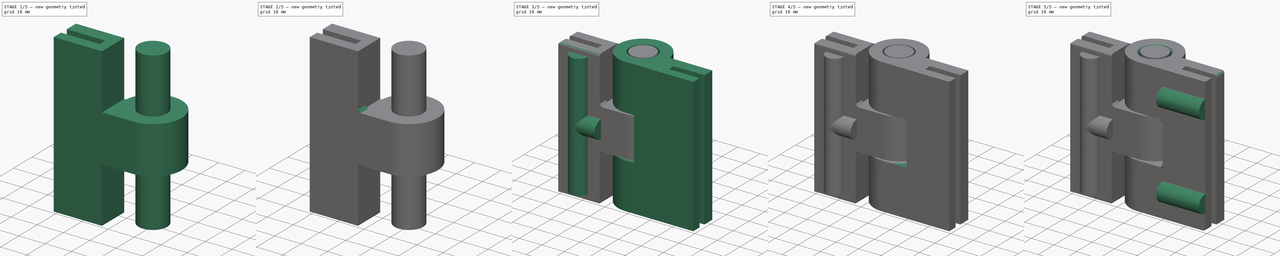
[diagram: build sequence overview — one tinted view per stage of 5, left to right]
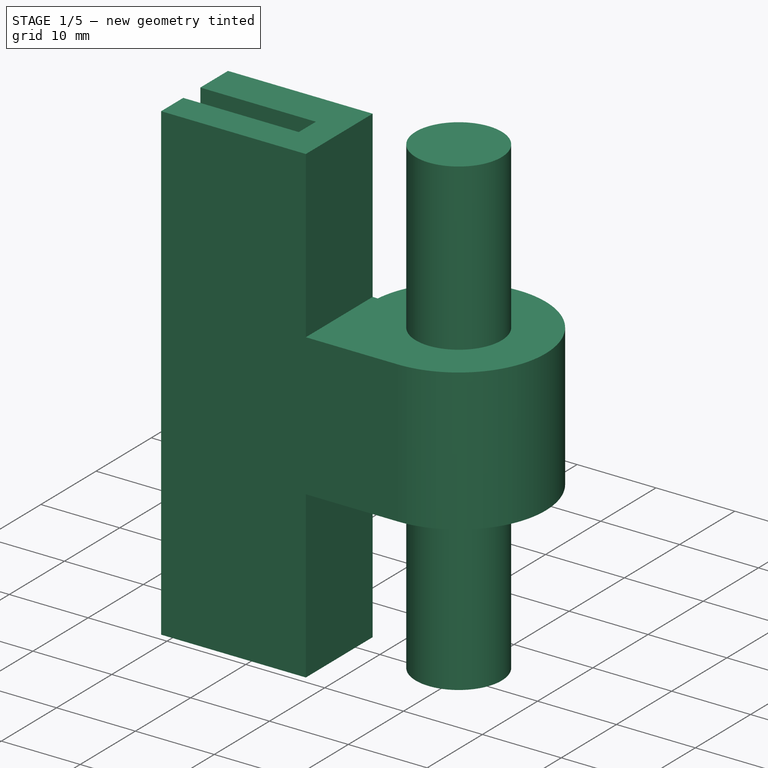
[diagram: stage 1 of 5 — iso view after this stage's code; geometry added in this stage tinted green]
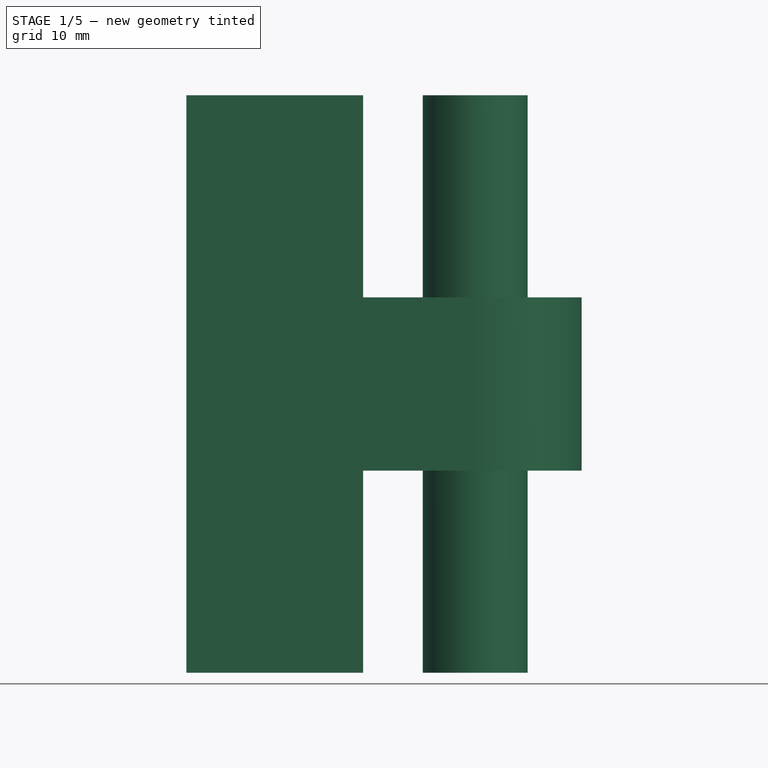
[diagram: stage 1 of 5 — front view after this stage's code; geometry added in this stage tinted green]
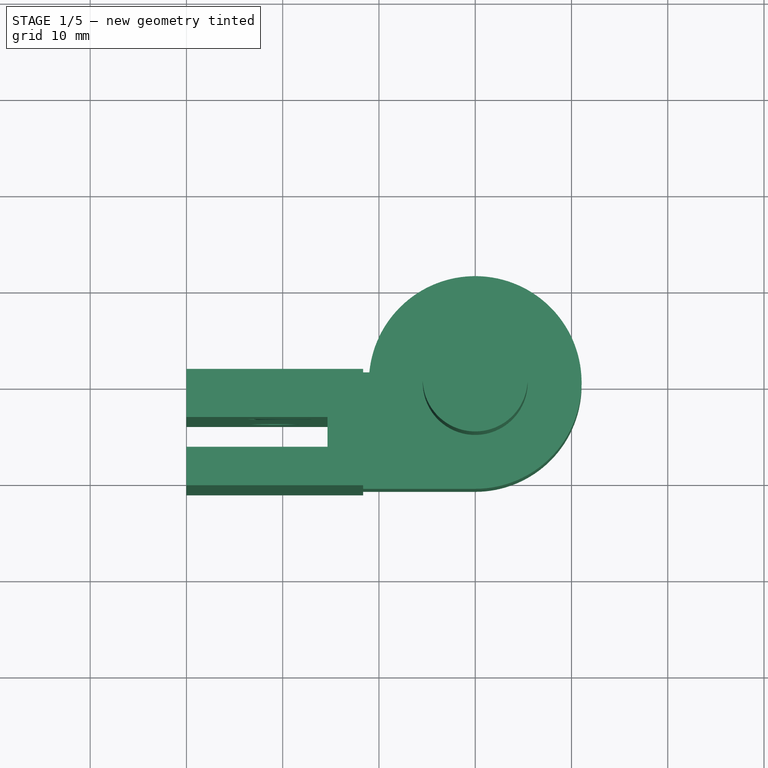
[diagram: stage 1 of 5 — top view after this stage's code; geometry added in this stage tinted green]
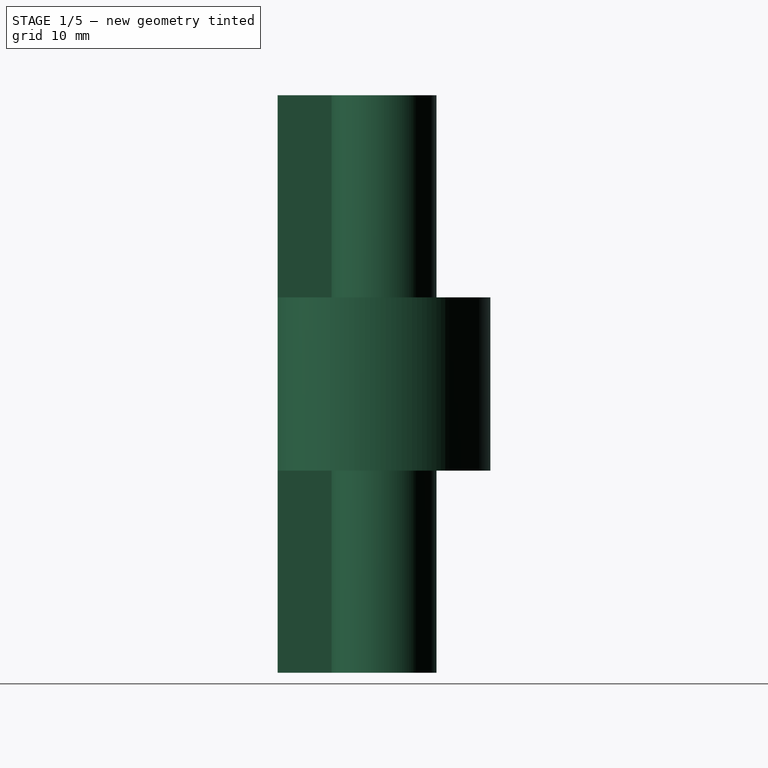
[diagram: stage 1 of 5 — right view after this stage's code; geometry added in this stage tinted green]
FCSTD DOCUMENT  (FreeCAD 0.20R29177 (Git))
Label: glassHindgeHolder
License: All rights reserved
LicenseURL: http://en.wikipedia.org/wiki/All_rights_reserved
objects: Sketcher::SketchObject×20, PartDesign::Pad×11, PartDesign::Pocket×5, PartDesign::SubtractiveHelix×4, PartDesign::Fillet×2, PartDesign::Body×2, Spreadsheet::Sheet×1, Part::MultiFuse×1
note: 67 computed .brp shape members not serialized (recipe doc carries the construction recipe); baked Part::Feature solids carry a one-line shape summary decoded from their .brp

FEATURE [Sketcher::SketchObject] Sketch002
  FullyConstrained = true
  MapMode = 5
  Support = -> [XY_Plane001]
  expr: Constraints[12] = Spreadsheet.innerScrewWall
  expr: Constraints[16] = Spreadsheet.glassHolderWidth
  expr: Constraints[18] = Spreadsheet.outerHingeR
  expr: Constraints[24] = Spreadsheet.outerHingeR + Spreadsheet.screwGuideInnerR
  expr: Constraints[8] = Spreadsheet.width
  expr: Constraints[9] = Spreadsheet.outerScrewWall
  sketch-geometry (8):
    g0: LineSegment StartX=-2e-15 StartY=-11.05 StartZ=0 EndX=-30 EndY=-11.05 EndZ=0
    g1: LineSegment StartX=-30 StartY=-11.05 StartZ=0 EndX=-30 EndY=-7.05 EndZ=0
    g2: LineSegment StartX=-30 StartY=-7.05 StartZ=0 EndX=-15.35 EndY=-7.05 EndZ=0
    g3: LineSegment StartX=-15.35 StartY=-3.95 StartZ=0 EndX=-30 EndY=-3.95 EndZ=0
    g4: LineSegment StartX=-30 StartY=-3.95 StartZ=0 EndX=-30 EndY=1.05 EndZ=0
    g5: LineSegment StartX=-30 StartY=1.05 StartZ=0 EndX=-11 EndY=1.05 EndZ=0
    g6: ArcOfCircle CenterX=0 CenterY=0 CenterZ=0 NormalX=0 NormalY=0 NormalZ=1 AngleXU=0 Radius=11.05 StartAngle=4.71239 EndAngle=9.32961
    g7: LineSegment StartX=-15.35 StartY=-3.95 StartZ=0 EndX=-15.35 EndY=-7.05 EndZ=0
  constraints (25):
    c: Coincident(g1,g0)
    c: Coincident(g2,g1)
    c: Coincident(g4,g3)
    c: Coincident(g5,g4)
    c: Parallel(g0,g-1)
    c: Parallel(g5,g-1)
    c: Parallel(g4,g-2)
    c: Parallel(g1,g-2)
    c: DistanceX(g0,g0) = 30
    c: DistanceY(g1,g1) = 4
    c: Parallel(g2,g-1)
    c: Parallel(g3,g-1)
    c: DistanceY(g4,g4) = 5
    c: DistanceX(g4,g1) = 0
    c: PointOnObject(g6,g5)
    c: Coincident(g6,g0)
    c: DistanceY(g1,g3) = 3.1
    c: PointOnObject(g5,g6)
    c: DistanceY(g0,g6) = 11.05
    c: Coincident(g6,g-1)
    c: Coincident(g7,g3)
    c: Vertical(g7)
    c: Coincident(g2,g7)
    c: PointOnObject(g0,g-2)
    c: DistanceX(g2,g0) = 15.35
FEATURE [PartDesign::Pad] Pad001
  Direction = (0,0,1)
  Length = 60
  Length2 = 10
  Midplane = true
  Profile = -> Sketch002
  ReferenceAxis = -> Sketch002 [N_Axis]
  Type = 0
  expr: Length = Spreadsheet.height
FEATURE [Sketcher::SketchObject] Sketch003
  FullyConstrained = true
  MapMode = 5
  Placement = pos=(0,0,0) rot=(1,0,0;1.5708rad)
  Support = -> [XZ_Plane001]
  expr: Constraints[15] = Spreadsheet.outerHindgeCutDistFromInside
  expr: Constraints[16] = Spreadsheet.hingeCutToCenter
  expr: Constraints[17] = Spreadsheet.hingeCutToCenter
  expr: Constraints[19] = Spreadsheet.height / 2
  expr: Constraints[20] = Spreadsheet.height / 2
  expr: Constraints[21] = Spreadsheet.slideAngle
  expr: Constraints[22] = Spreadsheet.slideAngle
  expr: Constraints[6] = Spreadsheet.outerHindgeCutDistFromInside
  expr: Constraints[7] = Spreadsheet.hingeCutToCenter
  expr: Constraints[8] = Spreadsheet.hingeCutToCenter
  sketch-geometry (8):
    g0: LineSegment StartX=-11.65 StartY=-9 StartZ=0 EndX=11.65 EndY=-9 EndZ=0
    g1: LineSegment StartX=11.65 StartY=-9 StartZ=0 EndX=11.65 EndY=-30 EndZ=0
    g2: LineSegment StartX=11.65 StartY=-30 StartZ=0 EndX=-11.65 EndY=-30 EndZ=0
    g3: LineSegment StartX=-11.65 StartY=-30 StartZ=0 EndX=-11.65 EndY=-9 EndZ=0
    g4: LineSegment StartX=-11.65 StartY=30 StartZ=0 EndX=11.65 EndY=30 EndZ=0
    g5: LineSegment StartX=11.65 StartY=30 StartZ=0 EndX=11.65 EndY=9 EndZ=0
    g6: LineSegment StartX=11.65 StartY=9 StartZ=0 EndX=-11.65 EndY=9 EndZ=0
    g7: LineSegment StartX=-11.65 StartY=9 StartZ=0 EndX=-11.65 EndY=30 EndZ=0
  constraints (24):
    c: Coincident(g0,g1)
    c: Coincident(g1,g2)
    c: Coincident(g2,g3)
    c: Coincident(g3,g0)
    c: Vertical(g1)
    c: Vertical(g3)
    c: DistanceY(g0,g-1) = 9
    c: DistanceX(g-1,g1) = 11.65
    c: DistanceX(g2,g-1) = 11.65
    c: Coincident(g4,g5)
    c: Coincident(g5,g6)
    c: Coincident(g6,g7)
    c: Coincident(g7,g4)
    c: Vertical(g5)
    c: Vertical(g7)
    c: DistanceY(g-1,g5) = 9
    c: DistanceX(g-1,g5) = 11.65
    c: DistanceX(g6,g-1) = 11.65
    c: Parallel(g6,g4)
    c: DistanceY(g-1,g4) = 30
    c: DistanceY(g1,g-1) = 30
    c: Angle(g6,g-1) = 0
    c: Angle(g0,g-1) = 0
    c: Horizontal(g2)
FEATURE [PartDesign::Pocket] Pocket001
  BaseFeature = -> Pad001
  Direction = (0,1,2e-16)
  Length = 25
  Length2 = 5
  Midplane = true
  Profile = -> Sketch003
  ReferenceAxis = -> Sketch003 [N_Axis]
  Type = 0
FEATURE [Sketcher::SketchObject] Sketch004
  FullyConstrained = true
  MapMode = 5
  Support = -> [XY_Plane001]
  expr: Constraints[1] = Spreadsheet.innerHingeR - Spreadsheet.hingeSpacing
  sketch-geometry (1):
    g0: Circle CenterX=0 CenterY=0 CenterZ=0 NormalX=0 NormalY=0 NormalZ=1 AngleXU=0 Radius=5.45
  constraints (2):
    c: Coincident(g0,g-1)
    c: Radius(g0) = 5.45
FEATURE [PartDesign::Pad] Pad002  label="Pad002Part2Final"
  BaseFeature = -> Pocket001
  Direction = (0,0,1)
  Length = 60
  Length2 = 10
  Midplane = true
  Profile = -> Sketch004
  ReferenceAxis = -> Sketch004 [N_Axis]
  Type = 0
  expr: Length = Spreadsheet.height
FEATURE [Sketcher::SketchObject] Sketch009
  AttachmentOffset = pos=(0,0,3.95) rot=(0,0,1;0rad)
  FullyConstrained = true
  MapMode = 5
  Placement = pos=(0,-3.95,-9e-16) rot=(1,0,0;1.5708rad)
  Support = -> [XZ_Plane001]
  expr: .AttachmentOffset.Base.z = Spreadsheet.innerHindgeSurfaceToCenter
  expr: Constraints[0] = Spreadsheet.screwToCenterHeight
  expr: Constraints[1] = Spreadsheet.screwToCenterHeight
  expr: Constraints[2] = Spreadsheet.screwToCenterDist
  expr: Constraints[3] = Spreadsheet.screwToCenterDist
  expr: Constraints[4] = Spreadsheet.screwR
  expr: Constraints[5] = Spreadsheet.screwR
  sketch-geometry (2):
    g0: Circle CenterX=-20.825 CenterY=15 CenterZ=0 NormalX=0 NormalY=0 NormalZ=1 AngleXU=0 Radius=2.5
    g1: Circle CenterX=-20.825 CenterY=-15 CenterZ=0 NormalX=0 NormalY=0 NormalZ=1 AngleXU=0 Radius=2.5
  constraints (6):
    c: DistanceY(g-1,g0) = 15
    c: DistanceY(g1,g-1) = 15
    c: DistanceX(g0,g-1) = 20.825
    c: DistanceX(g1,g-1) = 20.825
    c: Radius(g0) = 2.5
    c: Radius(g1) = 2.5
FEATURE [PartDesign::Pocket] Pocket004
  BaseFeature = -> Pad002
  Direction = (0,1,2e-16)
  Length = 5
  Length2 = 5
  Profile = -> Sketch009
  ReferenceAxis = -> Sketch009 [N_Axis]
  Type = 2
FEATURE [Sketcher::SketchObject] SketchTemp_Sketch009_Edge0
  AttachmentOffset = pos=(-20.825,15,0) rot=(1,0,0;1.5708rad)
  FullyConstrained = false
  MapMode = 5
  Placement = pos=(-20.825,-3.3e-15,15) rot=(1,0,0;3.14159rad)
  Support = -> [XZ_Plane001]
  expr: .AttachmentOffset.Base.x = -Spreadsheet.screwToCenterDist
  expr: .AttachmentOffset.Base.y = Spreadsheet.screwToCenterHeight
  sketch-geometry (3):
    g0: LineSegment StartX=2.5 StartY=-1.01079 StartZ=0 EndX=4.05885 EndY=-1.91079 EndZ=0
    g1: LineSegment StartX=4.05885 StartY=-1.91079 StartZ=0 EndX=2.5 EndY=-2.81079 EndZ=0
    g2: LineSegment StartX=2.5 StartY=-2.81079 StartZ=0 EndX=2.5 EndY=-1.01079 EndZ=0
  constraints (8):
    c: Equal(g2,g0)
    c: Equal(g2,g1)
    c: Distance(g2) = 1.8
    c: Coincident(g0,g1)
    c: Coincident(g1,g2)
    c: Coincident(g2,g0)
    c: Parallel(g2,g-2)
    c: DistanceX(g-1,g0) = 2.5
FEATURE [PartDesign::SubtractiveHelix] SubtractiveHelix
  Angle = 0
  Axis = (0,-1,-2e-16)
  Base = (-20.825,-3.3e-15,15)
  BaseFeature = -> Pocket004
  Growth = 0
  HasBeenEdited = false
  Height = 8
  LeftHanded = false
  Mode = 0
  Outside = false
  Pitch = 1.9
  Profile = -> SketchTemp_Sketch009_Edge0
  ReferenceAxis = -> SketchTemp_Sketch009_Edge0 [V_Axis]
  Turns = 4.21053
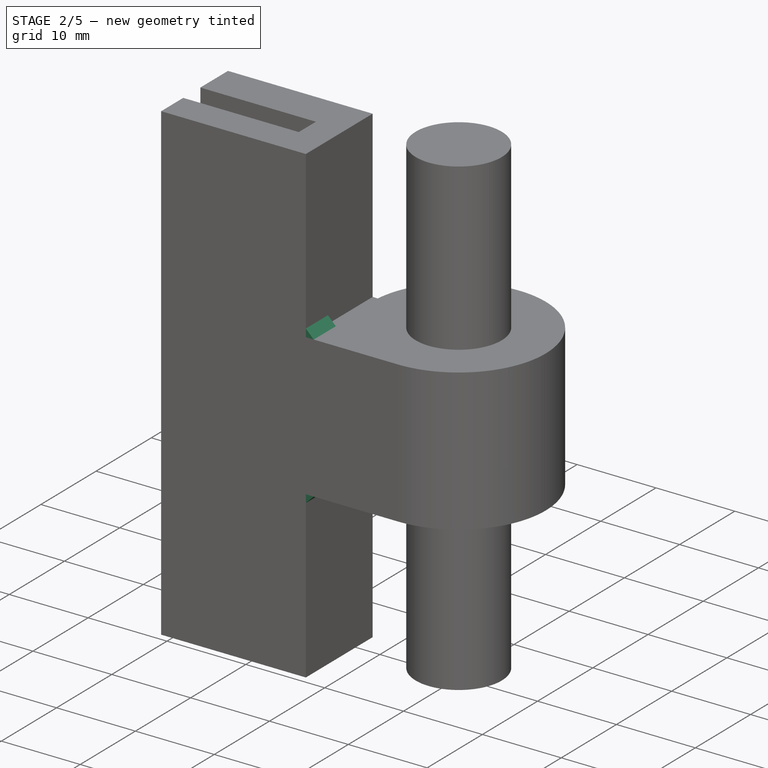
[diagram: stage 2 of 5 — iso view after this stage's code; geometry added in this stage tinted green]
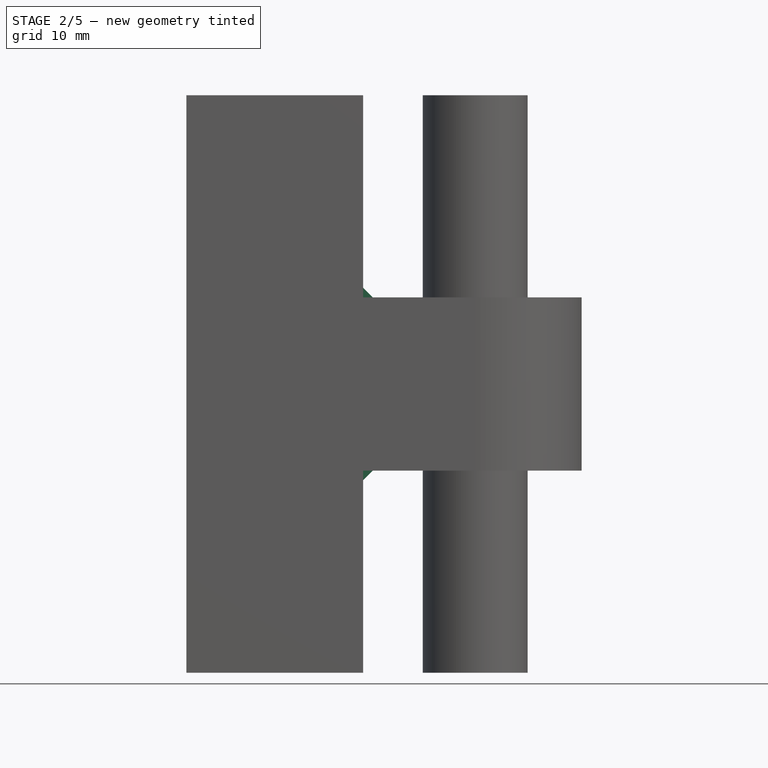
[diagram: stage 2 of 5 — front view after this stage's code; geometry added in this stage tinted green]
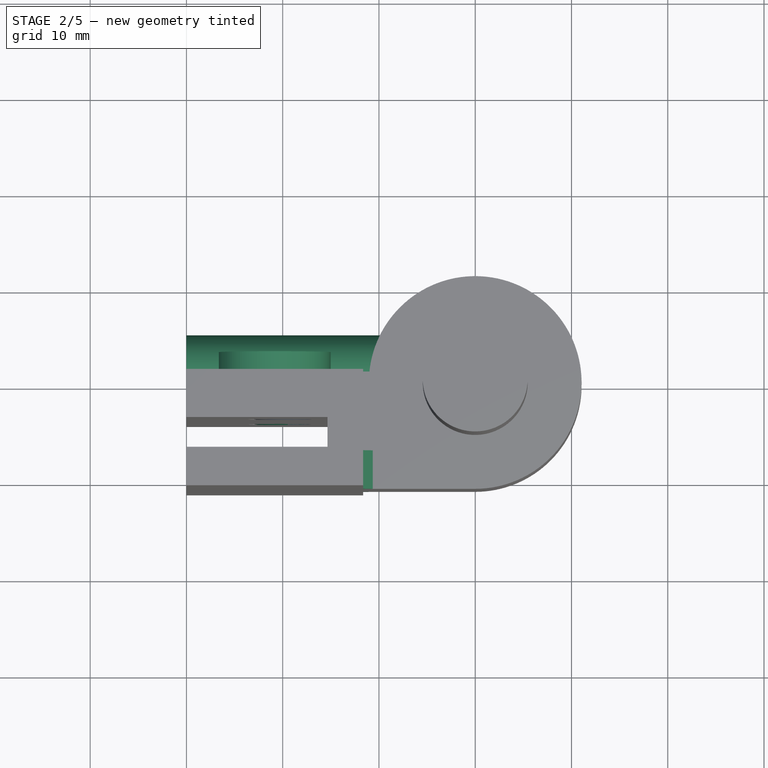
[diagram: stage 2 of 5 — top view after this stage's code; geometry added in this stage tinted green]
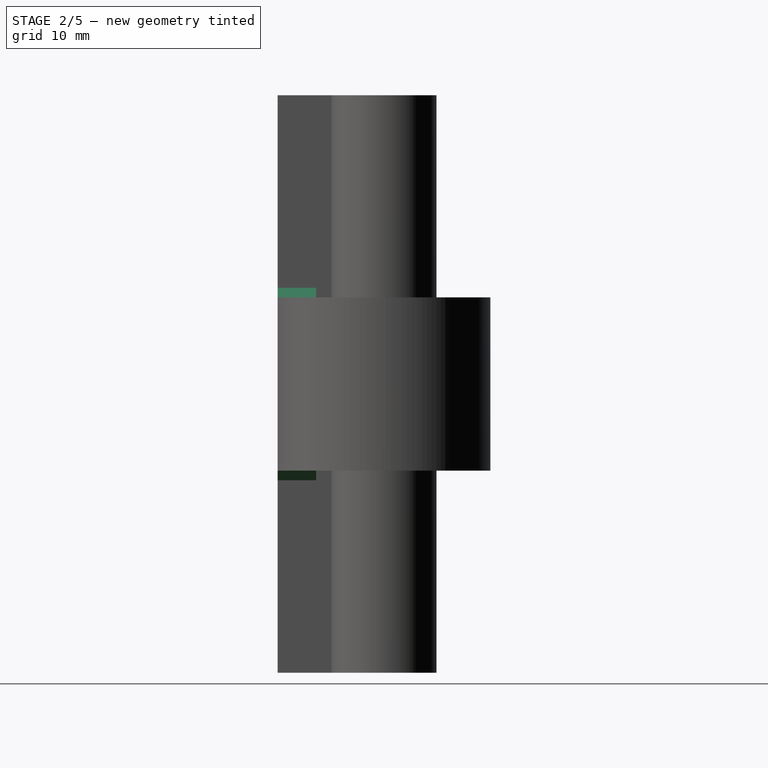
[diagram: stage 2 of 5 — right view after this stage's code; geometry added in this stage tinted green]
FEATURE [Sketcher::SketchObject] SketchTemp_Sketch009_Edge1
  AttachmentOffset = pos=(-20.825,-15,0) rot=(1,0,0;1.5708rad)
  FullyConstrained = false
  MapMode = 5
  Placement = pos=(-20.825,3.3e-15,-15) rot=(1,0,0;3.14159rad)
  Support = -> [XZ_Plane001]
  expr: .AttachmentOffset.Base.x = -Spreadsheet.screwToCenterDist
  expr: .AttachmentOffset.Base.y = -Spreadsheet.screwToCenterHeight
  sketch-geometry (3):
    g0: LineSegment StartX=2.5 StartY=-1.02955 StartZ=0 EndX=4.05885 EndY=-1.92955 EndZ=0
    g1: LineSegment StartX=4.05885 StartY=-1.92955 StartZ=0 EndX=2.5 EndY=-2.82955 EndZ=0
    g2: LineSegment StartX=2.5 StartY=-2.82955 StartZ=0 EndX=2.5 EndY=-1.02955 EndZ=0
  constraints (8):
    c: Equal(g2,g0)
    c: Equal(g2,g1)
    c: Distance(g2) = 1.8
    c: Coincident(g0,g1)
    c: Coincident(g1,g2)
    c: Coincident(g2,g0)
    c: Parallel(g2,g-2)
    c: DistanceX(g-1,g0) = 2.5
FEATURE [PartDesign::SubtractiveHelix] SubtractiveHelix001
  Angle = 0
  Axis = (0,-1,-2e-16)
  Base = (-20.825,3.3e-15,-15)
  BaseFeature = -> SubtractiveHelix
  Growth = 0
  HasBeenEdited = false
  Height = 8
  LeftHanded = false
  Mode = 0
  Outside = false
  Pitch = 1.9
  Profile = -> SketchTemp_Sketch009_Edge1
  ReferenceAxis = -> SketchTemp_Sketch009_Edge1 [V_Axis]
  Turns = 4.21053
FEATURE [Sketcher::SketchObject] Sketch011
  AttachmentOffset = pos=(0,0,11.05) rot=(0,0,1;0rad)
  FullyConstrained = true
  MapMode = 5
  Placement = pos=(0,-11.05,-2.5e-15) rot=(1,0,0;1.5708rad)
  Support = -> [XZ_Plane001]
  expr: .AttachmentOffset.Base.z = Spreadsheet.outerHingeR
  expr: Constraints[14] = Spreadsheet.outerHindgeCutDistFromInside
  expr: Constraints[15] = Spreadsheet.hingeCutToCenter
  expr: Constraints[16] = Spreadsheet.triangleLen
  expr: Constraints[6] = Spreadsheet.triangleLen
  expr: Constraints[7] = Spreadsheet.hingeCutToCenter
  expr: Constraints[8] = Spreadsheet.outerHindgeCutDistFromInside
  sketch-geometry (6):
    g0: LineSegment StartX=-11.65 StartY=-9 StartZ=0 EndX=-11.65 EndY=-10 EndZ=0
    g1: LineSegment StartX=-11.65 StartY=-10 StartZ=0 EndX=-10.65 EndY=-9 EndZ=0
    g2: LineSegment StartX=-10.65 StartY=-9 StartZ=0 EndX=-11.65 EndY=-9 EndZ=0
    g3: LineSegment StartX=-11.65 StartY=9 StartZ=0 EndX=-11.65 EndY=10 EndZ=0
    g4: LineSegment StartX=-11.65 StartY=10 StartZ=0 EndX=-10.65 EndY=9 EndZ=0
    g5: LineSegment StartX=-10.65 StartY=9 StartZ=0 EndX=-11.65 EndY=9 EndZ=0
  constraints (18):
    c: Vertical(g0)
    c: Coincident(g1,g0)
    c: Coincident(g2,g1)
    c: Equal(g2,g0)
    c: Coincident(g0,g2)
    c: Horizontal(g2)
    c: DistanceX(g2,g2) = 1
    c: DistanceX(g0,g-1) = 11.65
    c: DistanceY(g0,g-1) = 9
    c: Coincident(g4,g3)
    c: Coincident(g5,g4)
    c: Coincident(g5,g3)
    c: Horizontal(g5)
    c: Vertical(g3)
    c: DistanceY(g-1,g3) = 9
    c: DistanceX(g3,g-1) = 11.65
    c: DistanceX(g5,g5) = 1
    c: Equal(g5,g3)
FEATURE [PartDesign::Pad] Pad004
  BaseFeature = -> SubtractiveHelix001
  Direction = (0,-1,-2e-16)
  Length = 4
  Length2 = 10
  Profile = -> Sketch011
  ReferenceAxis = -> Sketch011 [N_Axis]
  Reversed = true
  Type = 0
  expr: Length = Spreadsheet.outerScrewWall
FEATURE [Sketcher::SketchObject] Sketch013
  AttachmentOffset = pos=(1.05,0,-6.05) rot=(0,0,1;0rad)
  FullyConstrained = true
  MapMode = 5
  Placement = pos=(-6.05,1.05,-1.6e-15) rot=(0.57735,0.57735,0.57735;2.0944rad)
  Support = -> [YZ_Plane001]
  expr: .AttachmentOffset.Base.x = Spreadsheet.innerScrewWall + Spreadsheet.outerScrewWall - Spreadsheet.outerHingeR + Spreadsheet.glassHolderWidth
  expr: .AttachmentOffset.Base.z = -Spreadsheet.innerHingeR
  expr: Constraints[4] = Spreadsheet.wedgeSize
  expr: Constraints[5] = Spreadsheet.wedgeSize * 2
  sketch-geometry (2):
    g0: ArcOfCircle CenterX=0 CenterY=0 CenterZ=0 NormalX=0 NormalY=0 NormalZ=1 AngleXU=0 Radius=4 StartAngle=4.71239 EndAngle=7.85398
    g1: LineSegment StartX=1.1049e-05 StartY=4 StartZ=0 EndX=1.1049e-05 EndY=-4 EndZ=0
  constraints (6):
    c: Coincident(g0,g-1)
    c: Vertical(g1)
    c: Coincident(g0,g1)
    c: Coincident(g0,g1)
    c: Radius(g0) = 4
    c: DistanceY(g1,g1) = 8
FEATURE [PartDesign::Pad] Pad006
  BaseFeature = -> Pad004
  Direction = (1,-2e-16,3e-16)
  Length = 23.95
  Length2 = 10
  Profile = -> Sketch013
  ReferenceAxis = -> Sketch013 [N_Axis]
  Reversed = true
  Type = 0
  expr: Length = Spreadsheet.width - Spreadsheet.innerHingeR
FEATURE [Sketcher::SketchObject] Sketch014  label="Sketch014ScrewGuide"
  FullyConstrained = true
  MapMode = 5
  Placement = pos=(0,1.05,0) rot=(0,0.707107,0.707107;3.14159rad)
  Support = -> [Pad006]
  expr: Constraints[2] = Spreadsheet.screwToCenterHeight
  expr: Constraints[3] = Spreadsheet.screwToCenterHeight
  expr: Constraints[4] = Spreadsheet.screwToCenterDist
  expr: Constraints[5] = Spreadsheet.screwToCenterDist
  expr: Constraints[6] = Spreadsheet.screwGuideInnerR
  expr: Constraints[7] = Spreadsheet.screwGuideOuterR
  sketch-geometry (4):
    g0: Circle CenterX=20.825 CenterY=15 CenterZ=0 NormalX=0 NormalY=0 NormalZ=1 AngleXU=0 Radius=4.3
    g1: Circle CenterX=20.825 CenterY=-15 CenterZ=0 NormalX=0 NormalY=0 NormalZ=1 AngleXU=0 Radius=4.3
    g2: Circle CenterX=20.825 CenterY=-15 CenterZ=0 NormalX=0 NormalY=0 NormalZ=1 AngleXU=0 Radius=5.8
    g3: Circle CenterX=20.825 CenterY=15 CenterZ=0 NormalX=0 NormalY=0 NormalZ=1 AngleXU=0 Radius=5.8
  constraints (10):
    c: Coincident(g2,g1)
    c: Coincident(g3,g0)
    c: DistanceY(g-1,g0) = 15
    c: DistanceY(g1,g-1) = 15
    c: DistanceX(g-1,g0) = 20.825
    c: DistanceX(g-1,g1) = 20.825
    c: Radius(g0) = 4.3
    c: Radius(g3) = 5.8
    c: Equal(g0,g1)
    c: Equal(g3,g2)
FEATURE [PartDesign::Pad] Pad007  label="Pad007ScrewGuide"
  BaseFeature = -> Pad006
  Direction = (0,1,-2e-16)
  Length = 2
  Length2 = 10
  Profile = -> Sketch014
  ReferenceAxis = -> Sketch014 [N_Axis]
  Type = 0
  expr: Length = Spreadsheet.screwGuideHeight
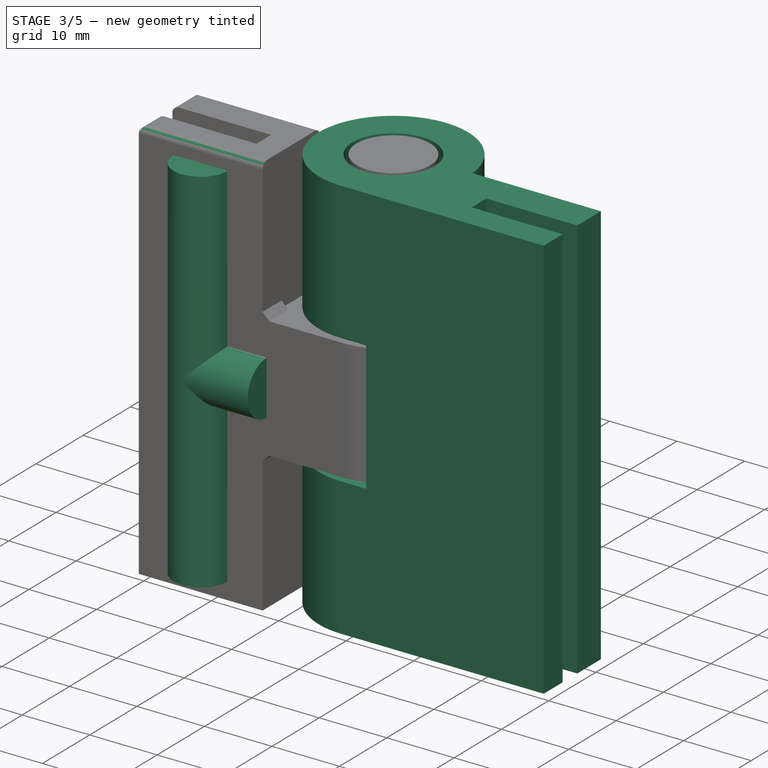
[diagram: stage 3 of 5 — iso view after this stage's code; geometry added in this stage tinted green]
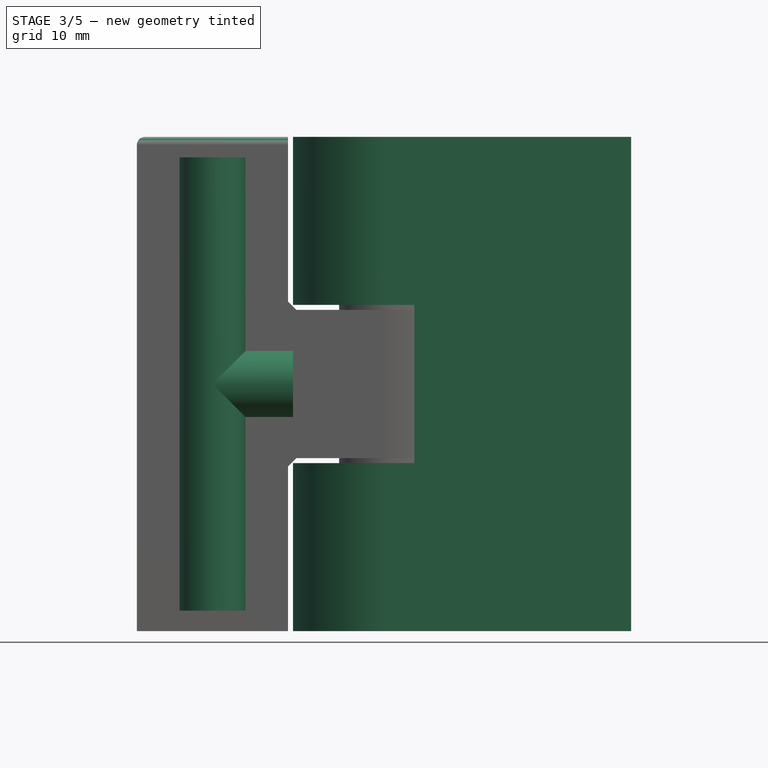
[diagram: stage 3 of 5 — front view after this stage's code; geometry added in this stage tinted green]
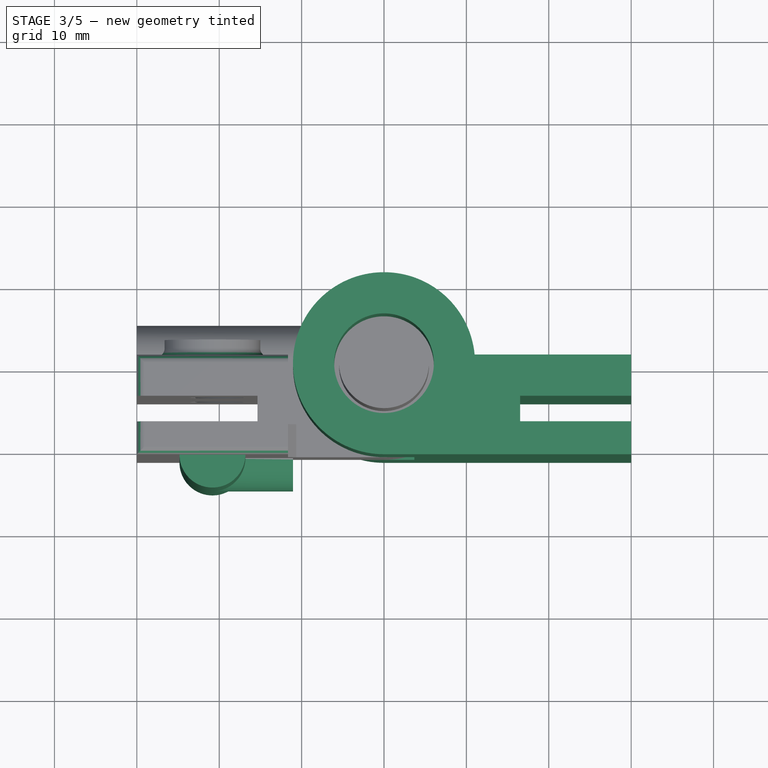
[diagram: stage 3 of 5 — top view after this stage's code; geometry added in this stage tinted green]
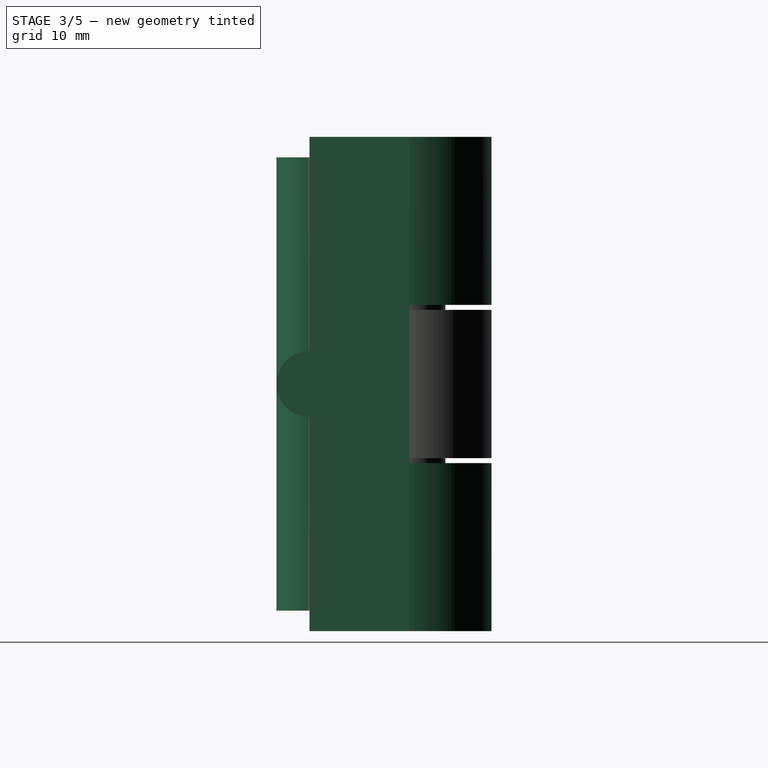
[diagram: stage 3 of 5 — right view after this stage's code; geometry added in this stage tinted green]
FEATURE [Sketcher::SketchObject] Sketch
  FullyConstrained = true
  MapMode = 5
  Support = -> [XY_Plane]
  expr: Constraints[12] = Spreadsheet.outerHingeR
  expr: Constraints[15] = Spreadsheet.outerScrewWall
  expr: Constraints[16] = Spreadsheet.innerScrewWall
  expr: Constraints[17] = Spreadsheet.width
  expr: Constraints[20] = Spreadsheet.glassHolderWidth
  expr: Constraints[25] = Spreadsheet.screwToCenterDist - Spreadsheet.screwGuideInnerR
  expr: Constraints[2] = Spreadsheet.innerHingeR
  expr: Constraints[3] = Spreadsheet.outerHingeR
  sketch-geometry (9):
    g0: Circle CenterX=0 CenterY=0 CenterZ=0 NormalX=0 NormalY=0 NormalZ=1 AngleXU=0 Radius=6.05
    g1: ArcOfCircle CenterX=0 CenterY=0 CenterZ=0 NormalX=0 NormalY=0 NormalZ=1 AngleXU=0 Radius=11.05 StartAngle=0.0951662 EndAngle=4.71239
    g2: LineSegment StartX=2.86892e-05 StartY=-11.05 StartZ=0 EndX=30 EndY=-11.05 EndZ=0
    g3: LineSegment StartX=30 StartY=-11.05 StartZ=0 EndX=30 EndY=-7.05 EndZ=0
    g4: LineSegment StartX=30 StartY=-3.95 StartZ=0 EndX=16.525 EndY=-3.95 EndZ=0
    g5: LineSegment StartX=16.525 StartY=-7.05 StartZ=0 EndX=30 EndY=-7.05 EndZ=0
    g6: LineSegment StartX=30 StartY=-3.95 StartZ=0 EndX=30 EndY=1.05 EndZ=0
    g7: LineSegment StartX=30 StartY=1.05 StartZ=0 EndX=11 EndY=1.05 EndZ=0
    g8: LineSegment StartX=16.525 StartY=-3.95 StartZ=0 EndX=16.525 EndY=-7.05 EndZ=0
  constraints (26):
    c: Coincident(g0,g-1)
    c: Coincident(g1,g0)
    c: Radius(g0) = 6.05
    c: Radius(g1) = 11.05
    c: Parallel(g7,g-1)
    c: Coincident(g3,g2)
    c: Coincident(g6,g7)
    c: Parallel(g6,g-2)
    c: Parallel(g3,g-2)
    c: Parallel(g2,g-1)
    c: Parallel(g-1,g4)
    c: Parallel(g5,g-1)
    c: DistanceY(g2,g0) = 11.05
    c: Coincident(g3,g5)
    c: Coincident(g4,g6)
    c: DistanceY(g3,g3) = 4
    c: DistanceY(g6,g6) = 5
    c: DistanceX(g2,g2) = 30
    c: Coincident(g1,g7)
    c: Coincident(g1,g2)
    c: DistanceY(g3,g4) = 3.1
    c: DistanceX(g4,g3) = 0
    c: Coincident(g8,g4)
    c: Coincident(g8,g5)
    c: Vertical(g8)
    c: DistanceX(g0,g4) = 16.525
FEATURE [Spreadsheet::Sheet] Spreadsheet
  cells = A2=outerScrewWall; B2(outerScrewWall)=4; A3=innerScrewWall; B3(innerScrewWall)=5; A4=glassHolderWidth; B4(glassHolderWidth)=3.1; A5=innerHingeR; B5(innerHingeR)==(B2 + B3 + B4) / 2; A6=hingeSpacing; B6(hingeSpacing)=0.6; A7=outerHingeR; B7(outerHingeR)==B5 + 5; A8=height; B8(height)=60; D8=outerHindgeInnerR; E8(outerHindgeInnerR)==B5 + B6; A9=width; B9(width)=30; A10=outerHindgeOpenHalfHeight; B10(outerHindgeOpenHalfHeight)==(B9 - B6 * 2) / 3; A11=outerHindgeCutDistFromInside; B11(outerHindgeCutDistFromInside)==B10 - B6; A12=hingeCutToCenter; B12(hingeCutToCenter)=11.65; A13=screwToCenterDist; B13(screwToCenterDist)==(B9 - B12) / 2 + B12; A14=screwToCenterHeight; B14(screwToCenterHeight)==B8 / 4; A15=screwR; B15(screwR)=2.5; A16=slideAngle; B16(slideAngle)=0; A17=holeDistToBase; B17(holeDistToBase)==B2 + B4; A18=CenterCutR; B18(CenterCutR)==B5 - B6; A19=innerHindgeSurfaceToCenter; B19(innerHindgeSurfaceToCenter)==B7 - B2 - B4; A20=CenterCutOuterR; B20(CenterCutOuterR)==B7 + B6; A21=wedgeSize; B21(wedgeSize)=4; A22=triangleLen; B22(triangleLen)=1; A23=screwGuideInnerR; B23(screwGuideInnerR)==B15 + 1.8; A24=screwGuideOuterR; B24(screwGuideOuterR)==B23 + 1.5; A25=screwGuideHeight; B25(screwGuideHeight)=2
FEATURE [PartDesign::Pad] Pad
  Direction = (0,0,1)
  Length = 60
  Length2 = 10
  Midplane = true
  Profile = -> Sketch
  ReferenceAxis = -> Sketch [N_Axis]
  Type = 0
  expr: Length = Spreadsheet.height
FEATURE [Sketcher::SketchObject] Sketch001
  FullyConstrained = true
  MapMode = 5
  Support = -> [XY_Plane]
  expr: Constraints[1] = Spreadsheet.CenterCutR
  expr: Constraints[3] = Spreadsheet.CenterCutOuterR
  sketch-geometry (2):
    g0: Circle CenterX=0 CenterY=0 CenterZ=0 NormalX=0 NormalY=0 NormalZ=1 AngleXU=0 Radius=5.45
    g1: Circle CenterX=0 CenterY=0 CenterZ=0 NormalX=0 NormalY=0 NormalZ=1 AngleXU=0 Radius=11.65
  constraints (4):
    c: Coincident(g0,g-1)
    c: Radius(g0) = 5.45
    c: Coincident(g1,g0)
    c: Radius(g1) = 11.65
FEATURE [PartDesign::Pocket] Pocket
  BaseFeature = -> Pad
  Direction = (0,0,-1)
  Length = 19.2
  Length2 = 5
  Midplane = true
  Profile = -> Sketch001
  ReferenceAxis = -> Sketch001 [N_Axis]
  Type = 0
  expr: Length = (Spreadsheet.outerHindgeCutDistFromInside + Spreadsheet.hingeSpacing) * 2
FEATURE [PartDesign::Fillet] Fillet
  Base = -> Pad007 [Edge52,Edge51,Edge25,Edge23,Edge22,Edge26]
  BaseFeature = -> Pad007
  Radius = 1
  SupportTransform = false
  UseAllEdges = false
FEATURE [PartDesign::Body] Body
  Group = -> [Sketch,Pad,Sketch001,Pocket,Sketch007,Pocket002,Sketch008,Pocket003,SketchTemp_Sketch007_Edge0,SubtractiveHelix002,SketchTemp_Sketch007_Edge1,SubtractiveHelix003,Sketch010,Pad003,Sketch012,Pad005,Sketch015,Pad008,Fillet001]
  Origin = -> Origin
  Tip = -> Fillet001
FEATURE [Sketcher::SketchObject] Sketch016
  FullyConstrained = true
  MapMode = 5
  Support = -> [XY_Plane001]
  expr: Constraints[2] = Spreadsheet.outerHingeR
  expr: Constraints[3] = Spreadsheet.screwToCenterDist
  expr: Constraints[4] = Spreadsheet.wedgeSize
  sketch-geometry (2):
    g0: ArcOfCircle CenterX=-20.825 CenterY=-11.05 CenterZ=0 NormalX=0 NormalY=0 NormalZ=1 AngleXU=0 Radius=4 StartAngle=3.14159 EndAngle=6.28319
    g1: LineSegment StartX=-24.825 StartY=-11.05 StartZ=0 EndX=-16.825 EndY=-11.05 EndZ=0
  constraints (7):
    c: Horizontal(g1)
    c: PointOnObject(g0,g1)
    c: DistanceY(g0,g-1) = 11.05
    c: DistanceX(g0,g-1) = 20.825
    c: Radius(g0) = 4
    c: Coincident(g0,g1)
    c: Coincident(g0,g1)
FEATURE [PartDesign::Pad] Pad009
  BaseFeature = -> Fillet
  Direction = (0,0,1)
  Length = 55
  Length2 = 10
  Midplane = true
  Profile = -> Sketch016
  ReferenceAxis = -> Sketch016 [N_Axis]
  Type = 0
  expr: Length = Spreadsheet.height - 5
FEATURE [Sketcher::SketchObject] Sketch017
  AttachmentOffset = pos=(0,0,-11.05) rot=(0,0,1;0rad)
  FullyConstrained = true
  MapMode = 5
  Placement = pos=(-11.05,2.5e-15,-2.5e-15) rot=(0.57735,0.57735,0.57735;2.0944rad)
  Support = -> [YZ_Plane001]
  expr: .AttachmentOffset.Base.z = -Spreadsheet.outerHingeR
  expr: Constraints[1] = Spreadsheet.outerHingeR
  expr: Constraints[2] = Spreadsheet.wedgeSize
  sketch-geometry (2):
    g0: ArcOfCircle CenterX=-11.05 CenterY=0 CenterZ=0 NormalX=0 NormalY=0 NormalZ=1 AngleXU=0 Radius=4 StartAngle=1.5708 EndAngle=4.71239
    g1: LineSegment StartX=-11.05 StartY=-4 StartZ=0 EndX=-11.05 EndY=4 EndZ=0
  constraints (7):
    c: PointOnObject(g0,g-1)
    c: DistanceX(g0,g-1) = 11.05
    c: Radius(g0) = 4
    c: Vertical(g1)
    c: PointOnObject(g0,g1)
    c: Coincident(g0,g1)
    c: Coincident(g0,g1)
FEATURE [PartDesign::Pad] Pad010
  BaseFeature = -> Pad009
  Direction = (1,-2e-16,3e-16)
  Length = 9.475
  Length2 = 10
  Profile = -> Sketch017
  ReferenceAxis = -> Sketch017 [N_Axis]
  Reversed = true
  Type = 0
  expr: Length = (Spreadsheet.width - Spreadsheet.outerHingeR) / 2
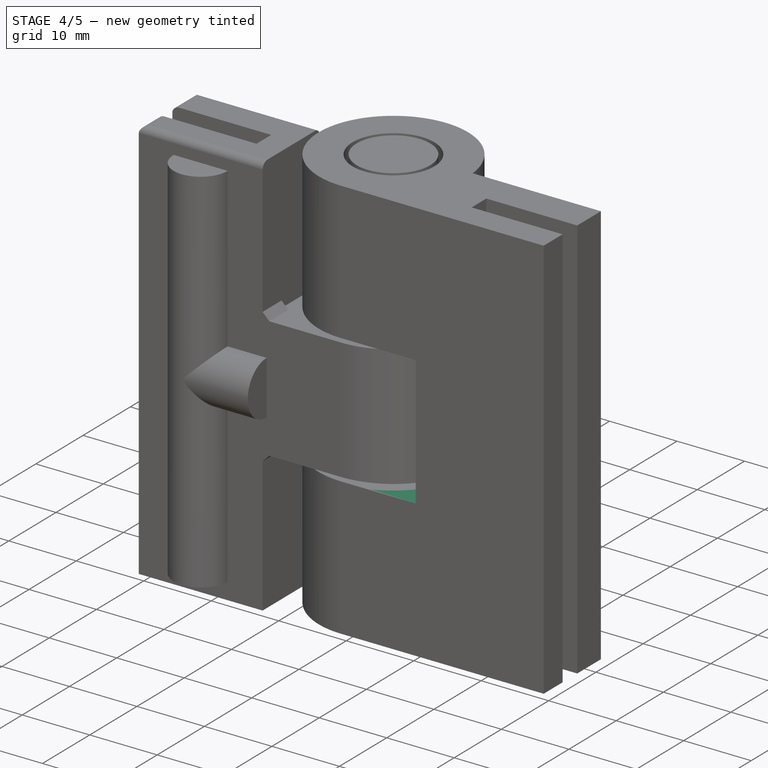
[diagram: stage 4 of 5 — iso view after this stage's code; geometry added in this stage tinted green]
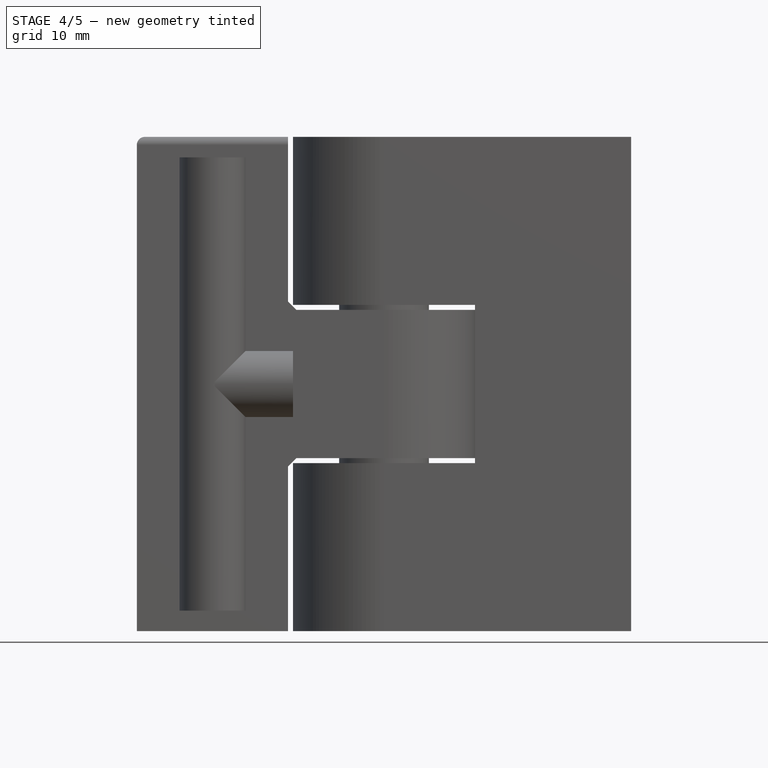
[diagram: stage 4 of 5 — front view after this stage's code; geometry added in this stage tinted green]
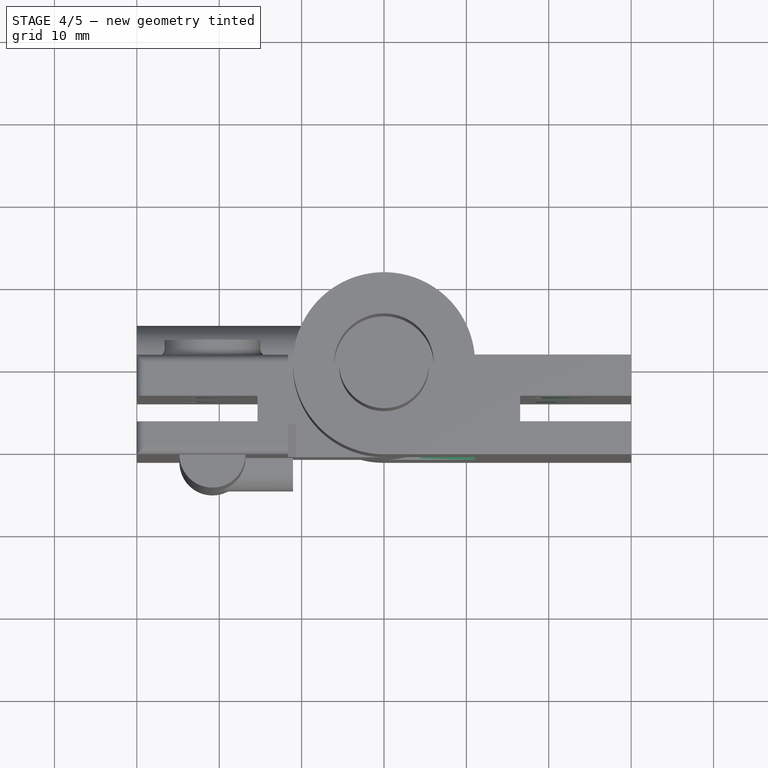
[diagram: stage 4 of 5 — top view after this stage's code; geometry added in this stage tinted green]
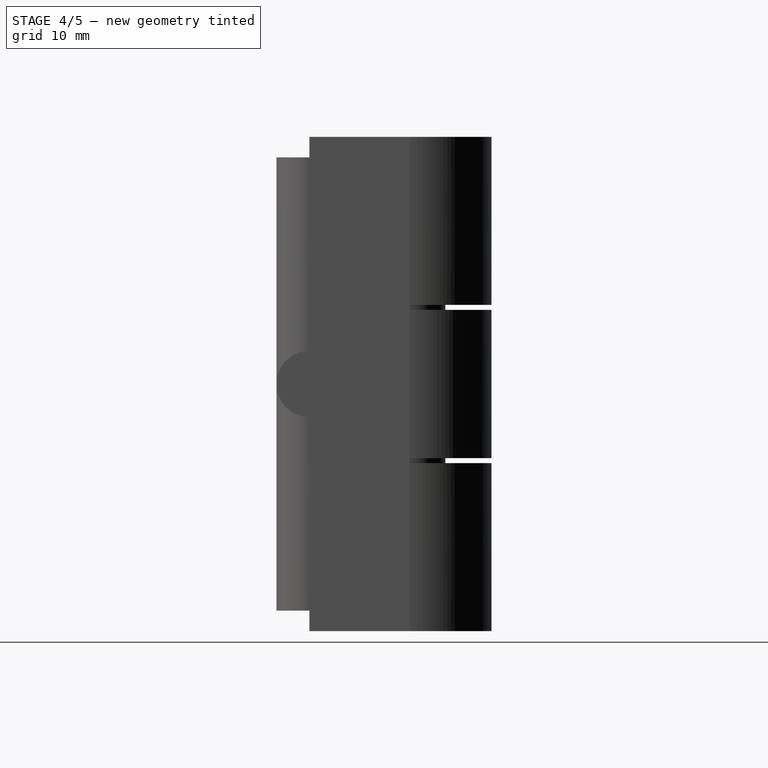
[diagram: stage 4 of 5 — right view after this stage's code; geometry added in this stage tinted green]
FEATURE [Sketcher::SketchObject] Sketch007
  AttachmentOffset = pos=(0,0,3.95) rot=(0,0,1;0rad)
  FullyConstrained = true
  MapMode = 5
  Placement = pos=(0,-3.95,-9e-16) rot=(1,0,0;1.5708rad)
  Support = -> [XZ_Plane]
  expr: .AttachmentOffset.Base.z = Spreadsheet.innerHindgeSurfaceToCenter
  expr: Constraints[0] = Spreadsheet.screwR
  expr: Constraints[1] = Spreadsheet.screwR
  expr: Constraints[2] = Spreadsheet.screwToCenterDist
  expr: Constraints[3] = Spreadsheet.screwToCenterDist
  expr: Constraints[4] = Spreadsheet.screwToCenterHeight
  expr: Constraints[5] = Spreadsheet.screwToCenterHeight
  sketch-geometry (2):
    g0: Circle CenterX=20.825 CenterY=15 CenterZ=0 NormalX=0 NormalY=0 NormalZ=1 AngleXU=0 Radius=2.5
    g1: Circle CenterX=20.825 CenterY=-15 CenterZ=0 NormalX=0 NormalY=0 NormalZ=1 AngleXU=0 Radius=2.5
  constraints (6):
    c: Radius(g0) = 2.5
    c: Radius(g1) = 2.5
    c: DistanceX(g-1,g0) = 20.825
    c: DistanceX(g-1,g1) = 20.825
    c: DistanceY(g-1,g0) = 15
    c: DistanceY(g1,g-1) = 15
FEATURE [PartDesign::Pocket] Pocket002
  BaseFeature = -> Pocket
  Direction = (0,1,2e-16)
  Length = 5
  Length2 = 5
  Profile = -> Sketch007
  ReferenceAxis = -> Sketch007 [N_Axis]
  Type = 2
FEATURE [Sketcher::SketchObject] Sketch008
  FullyConstrained = true
  MapMode = 5
  Placement = pos=(0,0,0) rot=(1,0,0;1.5708rad)
  Support = -> [XZ_Plane]
  expr: Constraints[10] = Spreadsheet.outerHindgeCutDistFromInside + Spreadsheet.hingeSpacing
  expr: Constraints[11] = Spreadsheet.outerHingeR
  expr: Constraints[9] = Spreadsheet.outerHindgeCutDistFromInside + Spreadsheet.hingeSpacing
  sketch-geometry (4):
    g0: LineSegment StartX=0 StartY=9.6 StartZ=0 EndX=11.05 EndY=9.6 EndZ=0
    g1: LineSegment StartX=11.05 StartY=9.6 StartZ=0 EndX=11.05 EndY=-9.6 EndZ=0
    g2: LineSegment StartX=11.05 StartY=-9.6 StartZ=0 EndX=0 EndY=-9.6 EndZ=0
    g3: LineSegment StartX=0 StartY=-9.6 StartZ=0 EndX=0 EndY=9.6 EndZ=0
  constraints (12):
    c: Coincident(g0,g1)
    c: Coincident(g1,g2)
    c: Coincident(g2,g3)
    c: Coincident(g3,g0)
    c: Horizontal(g0)
    c: Horizontal(g2)
    c: Vertical(g1)
    c: Vertical(g3)
    c: PointOnObject(g0,g-2)
    c: DistanceY(g-1,g0) = 9.6
    c: DistanceY(g2,g-1) = 9.6
    c: DistanceX(g0,g0) = 11.05
FEATURE [PartDesign::Pocket] Pocket003  label="Pocket003Part1Final"
  BaseFeature = -> Pocket002
  Direction = (0,1,2e-16)
  Length = 30
  Length2 = 5
  Midplane = true
  Profile = -> Sketch008
  ReferenceAxis = -> Sketch008 [N_Axis]
  Type = 0
FEATURE [Sketcher::SketchObject] SketchTemp_Sketch007_Edge0
  AttachmentOffset = pos=(20.825,15,0) rot=(1,0,0;1.5708rad)
  FullyConstrained = true
  MapMode = 5
  Placement = pos=(20.825,-3.3e-15,15) rot=(1,0,0;3.14159rad)
  Support = -> [XZ_Plane]
  expr: .AttachmentOffset.Base.x = Spreadsheet.screwToCenterDist
  expr: .AttachmentOffset.Base.y = Spreadsheet.screwToCenterHeight
  sketch-geometry (3):
    g0: LineSegment StartX=2.5 StartY=-1.07 StartZ=0 EndX=4.05885 EndY=-1.97 EndZ=0
    g1: LineSegment StartX=4.05885 StartY=-1.97 StartZ=0 EndX=2.5 EndY=-2.87 EndZ=0
    g2: LineSegment StartX=2.5 StartY=-2.87 StartZ=0 EndX=2.5 EndY=-1.07 EndZ=0
  constraints (9):
    c: Equal(g2,g0)
    c: Equal(g2,g1)
    c: Distance(g2) = 1.8
    c: Coincident(g0,g1)
    c: Coincident(g1,g2)
    c: Coincident(g2,g0)
    c: Parallel(g2,g-2)
    c: DistanceX(g-1,g0) = 2.5
    c: DistanceY(g0,g-1) = 1.07
FEATURE [PartDesign::SubtractiveHelix] SubtractiveHelix002
  Angle = 0
  Axis = (0,-1,-2e-16)
  Base = (20.825,-3.3e-15,15)
  BaseFeature = -> Pocket003
  Growth = 0
  HasBeenEdited = false
  Height = 8
  LeftHanded = false
  Mode = 0
  Outside = false
  Pitch = 1.9
  Profile = -> SketchTemp_Sketch007_Edge0
  ReferenceAxis = -> SketchTemp_Sketch007_Edge0 [V_Axis]
  Turns = 4.21053
FEATURE [Sketcher::SketchObject] SketchTemp_Sketch007_Edge1
  AttachmentOffset = pos=(20.825,-15,0) rot=(1,0,0;1.5708rad)
  FullyConstrained = true
  MapMode = 5
  Placement = pos=(20.825,3.3e-15,-15) rot=(1,0,0;3.14159rad)
  Support = -> [XZ_Plane]
  expr: .AttachmentOffset.Base.x = Spreadsheet.screwToCenterDist
  expr: .AttachmentOffset.Base.y = -Spreadsheet.screwToCenterHeight
  sketch-geometry (3):
    g0: LineSegment StartX=2.5 StartY=-0.9 StartZ=0 EndX=4.05885 EndY=-1.8 EndZ=0
    g1: LineSegment StartX=4.05885 StartY=-1.8 StartZ=0 EndX=2.5 EndY=-2.7 EndZ=0
    g2: LineSegment StartX=2.5 StartY=-2.7 StartZ=0 EndX=2.5 EndY=-0.9 EndZ=0
  constraints (9):
    c: Equal(g2,g0)
    c: Equal(g2,g1)
    c: Distance(g2) = 1.8
    c: Coincident(g0,g1)
    c: Coincident(g1,g2)
    c: Coincident(g2,g0)
    c: Parallel(g2,g-2)
    c: DistanceX(g-1,g0) = 2.5
    c: DistanceY(g0,g-1) = 1.8
FEATURE [PartDesign::SubtractiveHelix] SubtractiveHelix003
  Angle = 0
  Axis = (0,-1,-2e-16)
  Base = (20.825,3.3e-15,-15)
  BaseFeature = -> SubtractiveHelix002
  Growth = 0
  HasBeenEdited = false
  Height = 8
  LeftHanded = false
  Mode = 0
  Outside = false
  Pitch = 1.9
  Profile = -> SketchTemp_Sketch007_Edge1
  ReferenceAxis = -> SketchTemp_Sketch007_Edge1 [V_Axis]
  Turns = 4.21053
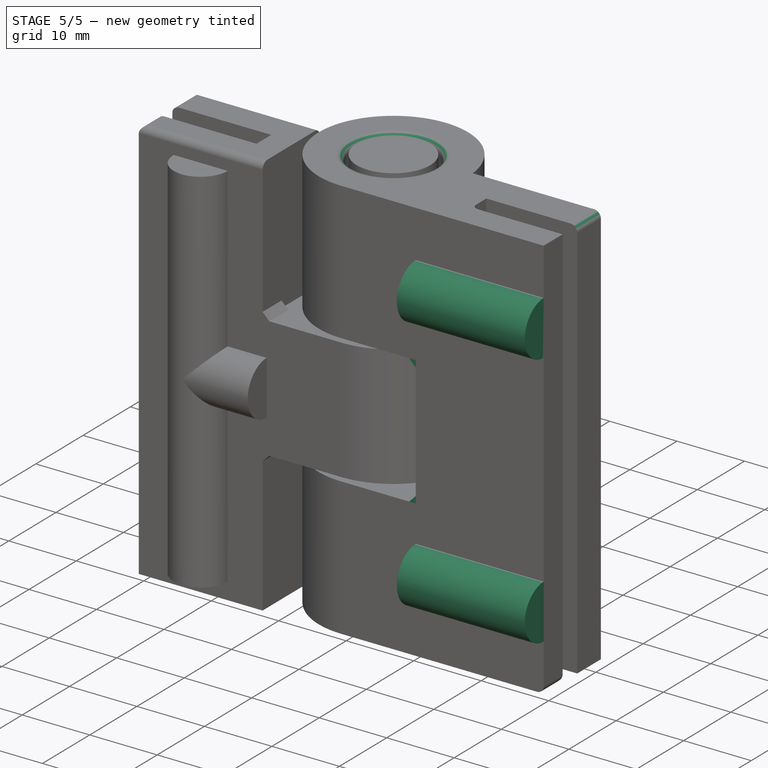
[diagram: stage 5 of 5 — iso view after this stage's code; geometry added in this stage tinted green]
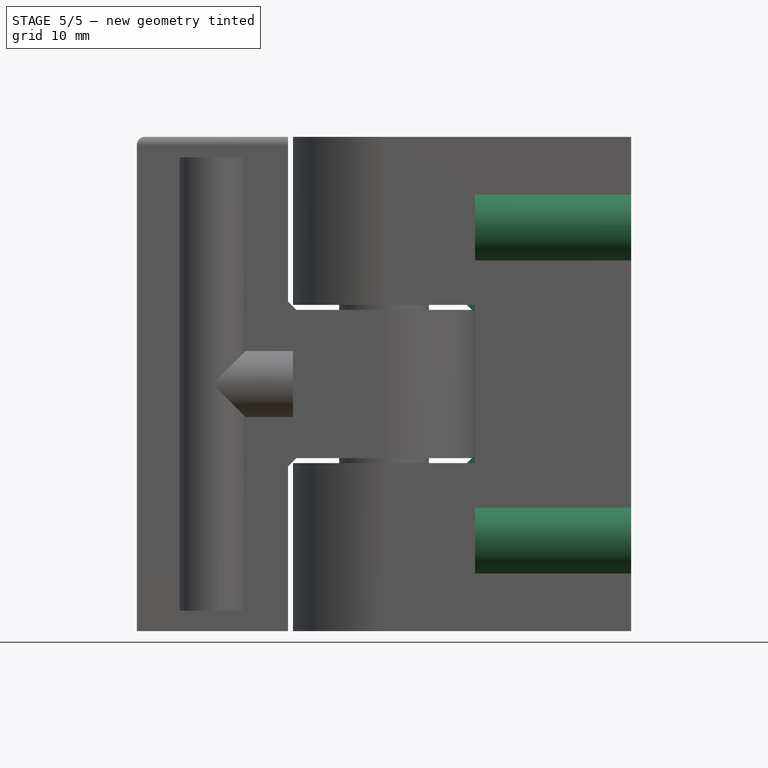
[diagram: stage 5 of 5 — front view after this stage's code; geometry added in this stage tinted green]
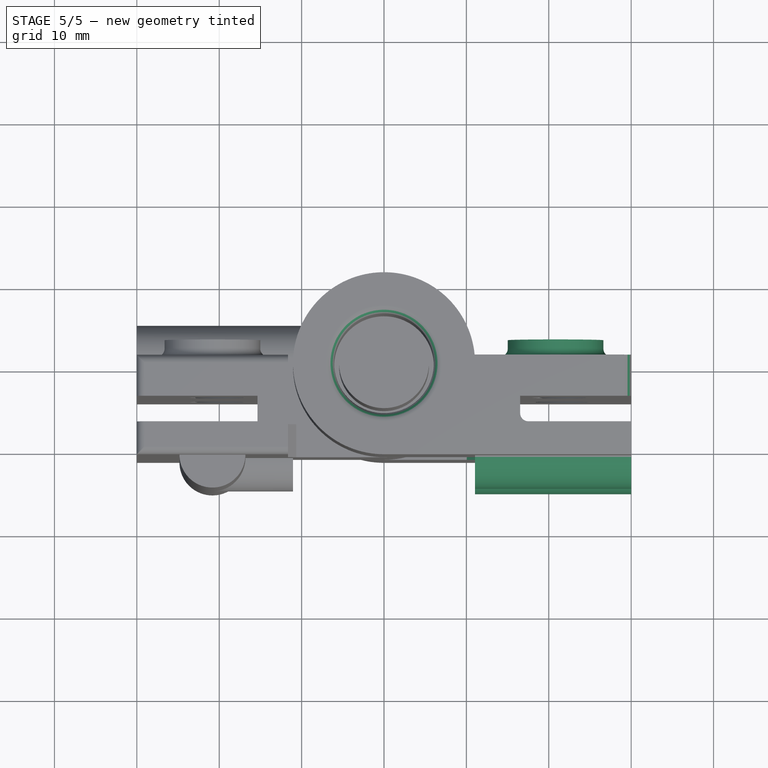
[diagram: stage 5 of 5 — top view after this stage's code; geometry added in this stage tinted green]
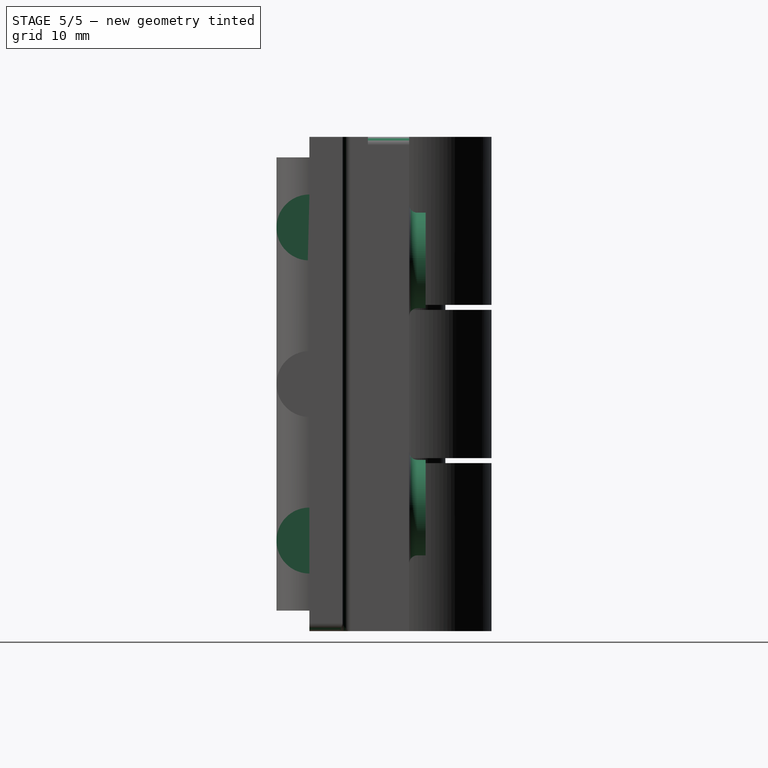
[diagram: stage 5 of 5 — right view after this stage's code; geometry added in this stage tinted green]
FEATURE [Sketcher::SketchObject] Sketch010
  AttachmentOffset = pos=(0,0,11.05) rot=(0,0,1;0rad)
  FullyConstrained = true
  MapMode = 5
  Placement = pos=(0,-11.05,-2.5e-15) rot=(1,0,0;1.5708rad)
  Support = -> [XZ_Plane]
  expr: .AttachmentOffset.Base.z = Spreadsheet.outerHingeR
  expr: Constraints[11] = Spreadsheet.outerHingeR
  expr: Constraints[12] = Spreadsheet.outerHingeR
  expr: Constraints[16] = Spreadsheet.triangleLen
  expr: Constraints[17] = Spreadsheet.triangleLen
  expr: Constraints[8] = Spreadsheet.outerHindgeCutDistFromInside + Spreadsheet.hingeSpacing
  expr: Constraints[9] = Spreadsheet.outerHindgeCutDistFromInside + Spreadsheet.hingeSpacing
  sketch-geometry (6):
    g0: LineSegment StartX=11.05 StartY=8.6 StartZ=0 EndX=10.05 EndY=9.6 EndZ=0
    g1: LineSegment StartX=11.05 StartY=9.6 StartZ=0 EndX=11.05 EndY=8.6 EndZ=0
    g2: LineSegment StartX=10.05 StartY=9.6 StartZ=0 EndX=11.05 EndY=9.6 EndZ=0
    g3: LineSegment StartX=11.05 StartY=-9.6 StartZ=0 EndX=10.05 EndY=-9.6 EndZ=0
    g4: LineSegment StartX=10.05 StartY=-9.6 StartZ=0 EndX=11.05 EndY=-8.6 EndZ=0
    g5: LineSegment StartX=11.05 StartY=-8.6 StartZ=0 EndX=11.05 EndY=-9.6 EndZ=0
  constraints (18):
    c: Coincident(g2,g0)
    c: Coincident(g2,g1)
    c: Vertical(g1)
    c: Equal(g2,g1)
    c: Coincident(g1,g0)
    c: Coincident(g5,g3)
    c: Coincident(g3,g4)
    c: Coincident(g4,g5)
    c: DistanceY(g-1,g1) = 9.6
    c: DistanceY(g3,g-1) = 9.6
    c: Vertical(g5)
    c: DistanceX(g-1,g3) = 11.05
    c: DistanceX(g-1,g1) = 11.05
    c: Horizontal(g2)
    c: Horizontal(g3)
    c: Equal(g3,g5)
    c: DistanceY(g1,g1) = 1
    c: DistanceY(g5,g5) = 1
FEATURE [PartDesign::Pad] Pad003
  BaseFeature = -> SubtractiveHelix003
  Direction = (0,-1,-2e-16)
  Length = 4
  Length2 = 10
  Profile = -> Sketch010
  ReferenceAxis = -> Sketch010 [N_Axis]
  Reversed = true
  Type = 0
  expr: Length = Spreadsheet.outerScrewWall
FEATURE [Sketcher::SketchObject] Sketch012
  AttachmentOffset = pos=(0,0,11.05) rot=(0,0,1;0rad)
  FullyConstrained = true
  MapMode = 5
  Placement = pos=(11.05,-2.5e-15,2.5e-15) rot=(0.57735,0.57735,0.57735;2.0944rad)
  Support = -> [YZ_Plane]
  expr: .AttachmentOffset.Base.z = Spreadsheet.outerHingeR
  expr: Constraints[10] = Spreadsheet.screwToCenterHeight + Spreadsheet.wedgeSize
  expr: Constraints[11] = Spreadsheet.wedgeSize
  expr: Constraints[2] = Spreadsheet.outerHingeR
  expr: Constraints[3] = Spreadsheet.outerHingeR
  expr: Constraints[7] = Spreadsheet.screwToCenterHeight + Spreadsheet.wedgeSize
  expr: Constraints[8] = Spreadsheet.wedgeSize
  sketch-geometry (4):
    g0: LineSegment StartX=-11.05 StartY=23 StartZ=0 EndX=-11.05 EndY=15 EndZ=0
    g1: LineSegment StartX=-11.05 StartY=-15 StartZ=0 EndX=-11.05 EndY=-23 EndZ=0
    g2: ArcOfCircle CenterX=-11.05 CenterY=19 CenterZ=0 NormalX=0 NormalY=0 NormalZ=1 AngleXU=0 Radius=4 StartAngle=1.5708 EndAngle=4.71239
    g3: ArcOfCircle CenterX=-11.05 CenterY=-19 CenterZ=0 NormalX=0 NormalY=0 NormalZ=1 AngleXU=0 Radius=4 StartAngle=1.5708 EndAngle=4.71239
  constraints (14):
    c: Vertical(g0)
    c: Vertical(g1)
    c: DistanceX(g0,g-1) = 11.05
    c: DistanceX(g1,g-1) = 11.05
    c: PointOnObject(g2,g0)
    c: Coincident(g2,g0)
    c: Coincident(g2,g0)
    c: DistanceY(g-1,g2) = 19
    c: Radius(g2) = 4
    c: PointOnObject(g3,g1)
    c: DistanceY(g3,g-1) = 19
    c: Radius(g3) = 4
    c: Coincident(g3,g1)
    c: Coincident(g3,g1)
FEATURE [PartDesign::Pad] Pad005  label="Pad005BacckSupport"
  BaseFeature = -> Pad003
  Direction = (1,-2e-16,3e-16)
  Length = 18.95
  Length2 = 10
  Profile = -> Sketch012
  ReferenceAxis = -> Sketch012 [N_Axis]
  Type = 0
  expr: Length = Spreadsheet.width - Spreadsheet.outerHingeR
FEATURE [Sketcher::SketchObject] Sketch015  label="Sketch015ScrewGuide"
  FullyConstrained = true
  MapMode = 5
  Placement = pos=(0,1.05,0) rot=(0,0.707107,0.707107;3.14159rad)
  Support = -> [Pad005]
  expr: Constraints[2] = Spreadsheet.screwToCenterHeight
  expr: Constraints[3] = Spreadsheet.screwToCenterHeight
  expr: Constraints[4] = Spreadsheet.screwToCenterDist
  expr: Constraints[5] = Spreadsheet.screwToCenterDist
  expr: Constraints[6] = Spreadsheet.screwGuideInnerR
  expr: Constraints[7] = Spreadsheet.screwGuideOuterR
  sketch-geometry (4):
    g0: Circle CenterX=-20.825 CenterY=15 CenterZ=0 NormalX=0 NormalY=0 NormalZ=1 AngleXU=0 Radius=4.3
    g1: Circle CenterX=-20.825 CenterY=15 CenterZ=0 NormalX=0 NormalY=0 NormalZ=1 AngleXU=0 Radius=5.8
    g2: Circle CenterX=-20.825 CenterY=-15 CenterZ=0 NormalX=0 NormalY=0 NormalZ=1 AngleXU=0 Radius=4.3
    g3: Circle CenterX=-20.825 CenterY=-15 CenterZ=0 NormalX=0 NormalY=0 NormalZ=1 AngleXU=0 Radius=5.8
  constraints (10):
    c: Coincident(g1,g0)
    c: Coincident(g3,g2)
    c: DistanceY(g-1,g0) = 15
    c: DistanceY(g2,g-1) = 15
    c: DistanceX(g0,g-1) = 20.825
    c: DistanceX(g2,g-1) = 20.825
    c: Radius(g0) = 4.3
    c: Radius(g1) = 5.8
    c: Equal(g0,g2)
    c: Equal(g3,g1)
FEATURE [PartDesign::Pad] Pad008  label="Pad008ScrewGuide"
  BaseFeature = -> Pad005
  Direction = (0,1,-2e-16)
  Length = 2
  Length2 = 10
  Profile = -> Sketch015
  ReferenceAxis = -> Sketch015 [N_Axis]
  Type = 0
  expr: Length = Spreadsheet.screwGuideHeight
FEATURE [PartDesign::Fillet] Fillet001
  Base = -> Pad008 [Edge30,Edge29,Edge38,Edge22,Edge39,Edge4,Edge26,Edge25]
  BaseFeature = -> Pad008
  Radius = 1
  SupportTransform = false
  UseAllEdges = false
FEATURE [PartDesign::Body] Body001  label="Part2"
  Group = -> [Sketch002,Pad001,Sketch003,Pocket001,Sketch004,Pad002,Sketch009,Pocket004,SketchTemp_Sketch009_Edge0,SubtractiveHelix,SketchTemp_Sketch009_Edge1,SubtractiveHelix001,Sketch011,Pad004,Sketch013,Pad006,Sketch014,Pad007,Fillet,Sketch016,Pad009,Sketch017,Pad010]
  Origin = -> Origin001
  Tip = -> Pad010
FEATURE [Part::MultiFuse] Fusion
  Shapes = -> [Fillet001,Pad010]
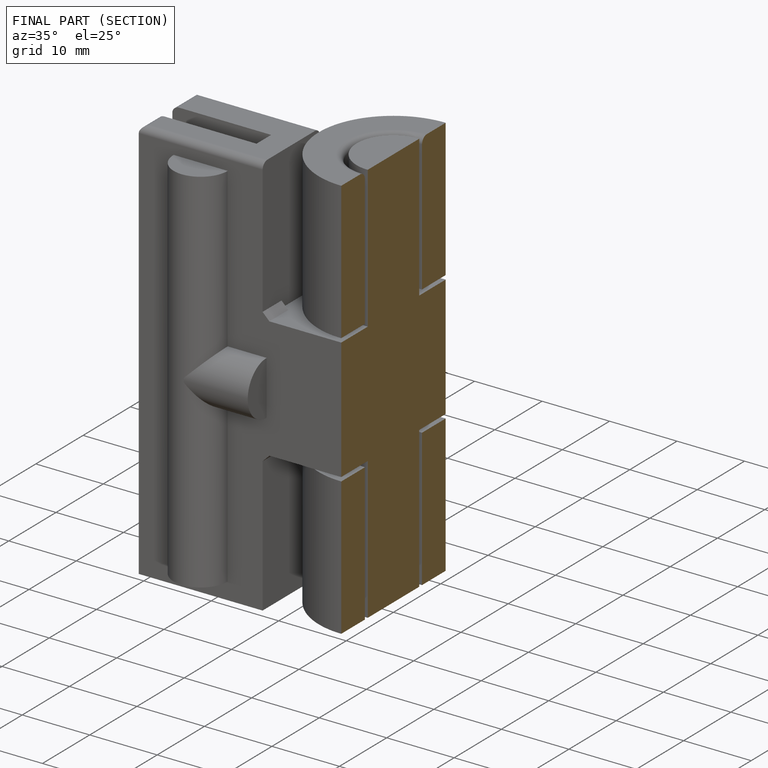
[diagram: finished part — half-section view (interior)]
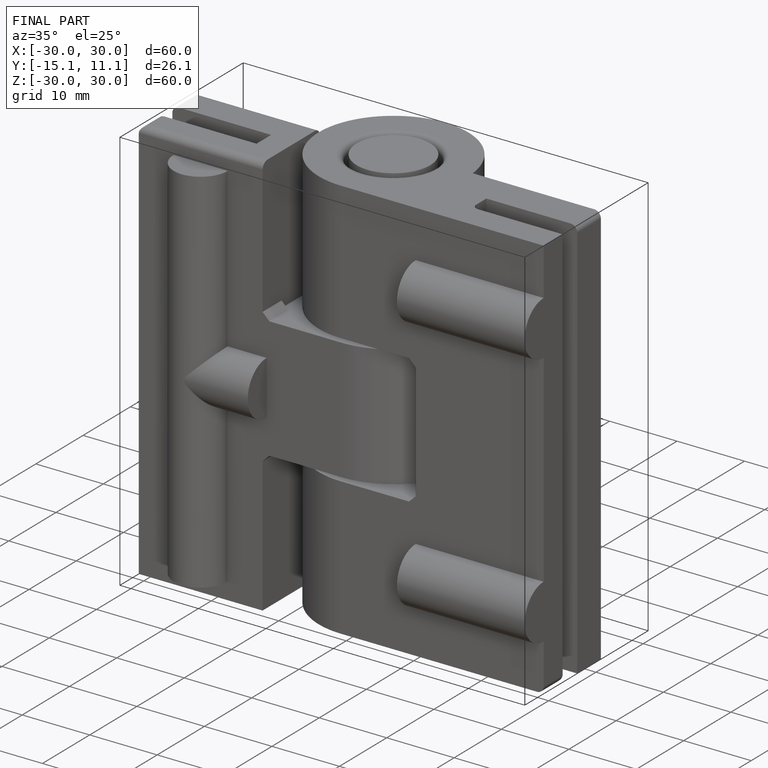
[diagram: finished part — iso view with bounding-box wireframe]
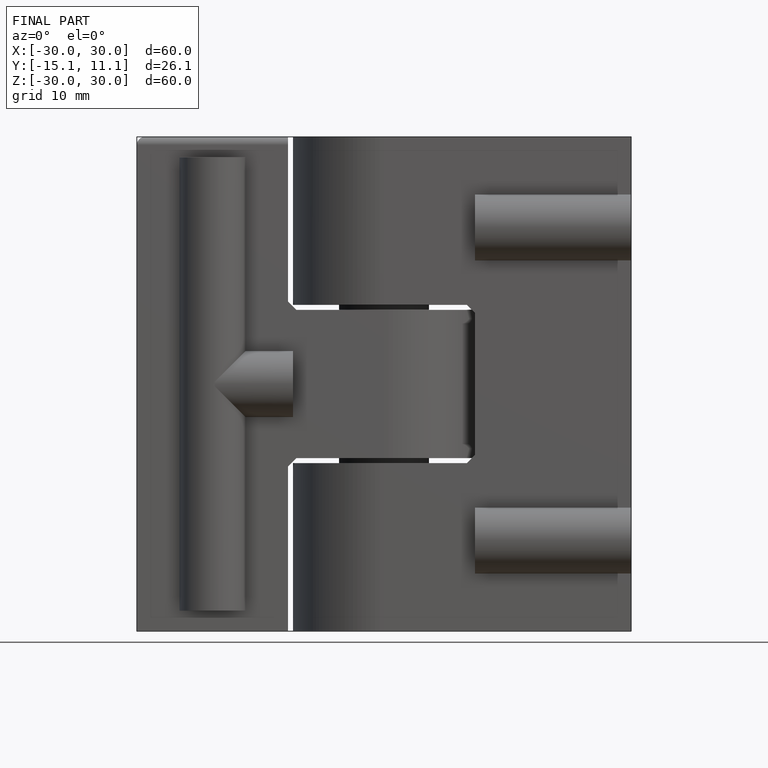
[diagram: finished part — front view with bounding-box wireframe]
